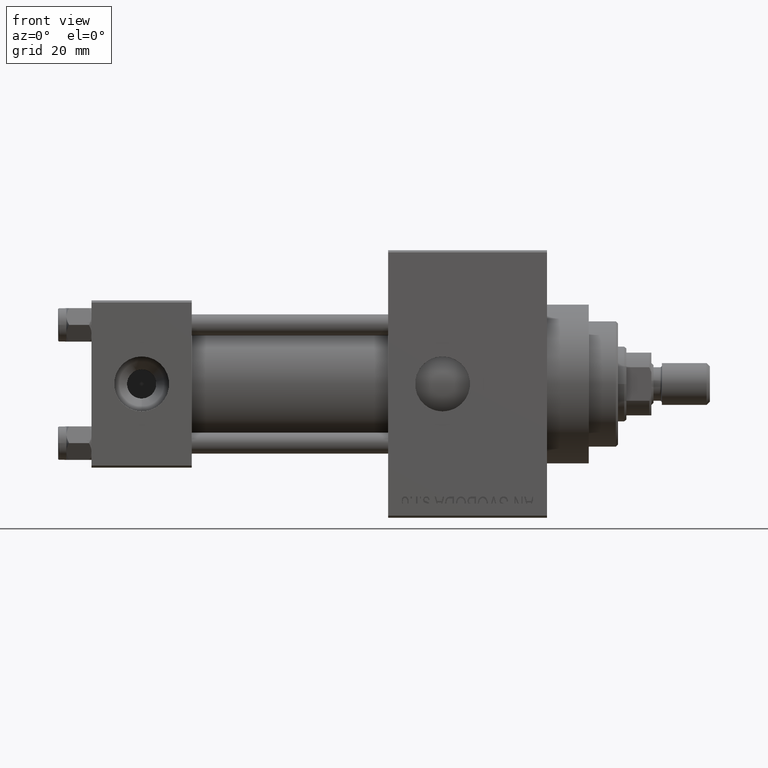
[diagram: clean part render]
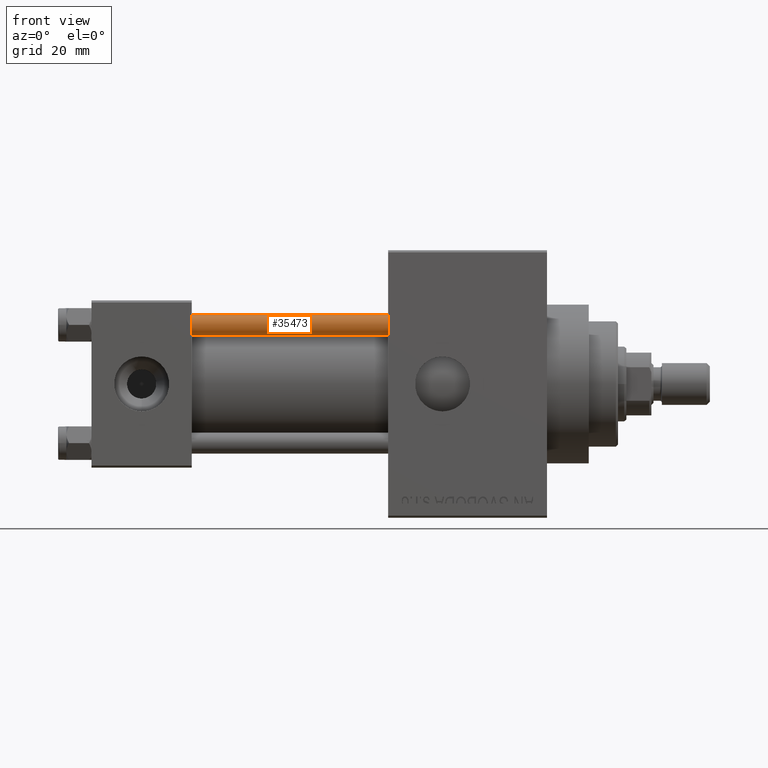
[diagram: same view with one face highlighted and labeled with its STEP entity id]
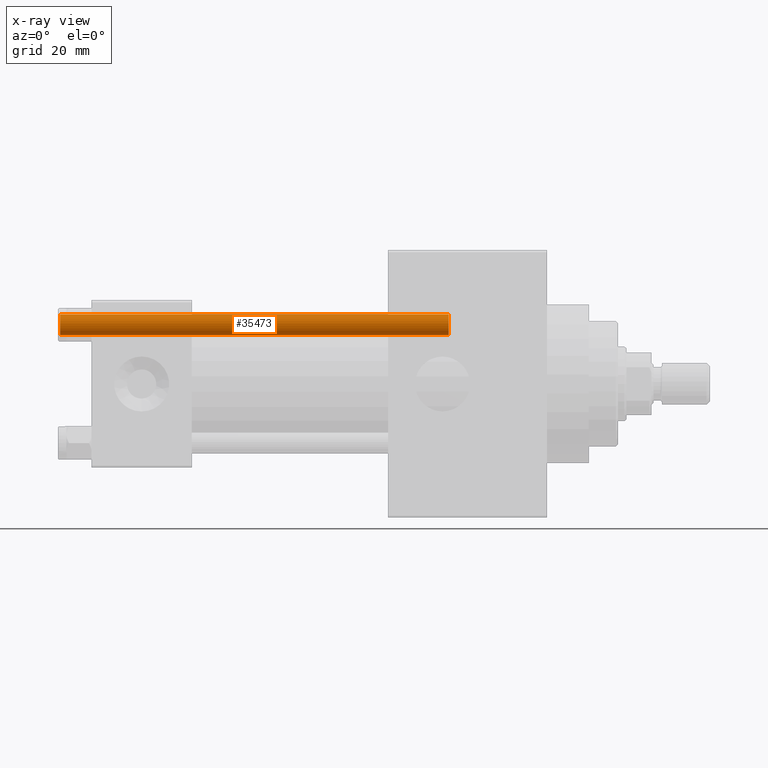
[diagram: x-ray of the same camera — body ghosted, the highlighted face saturated]
A machine part, front view. The second image highlights one B-rep face of the part: STEP entity #35473.
The next image is the same camera in x-ray: the body ghosted, the highlighted face saturated — about 0% of this face is hidden behind the body in this view.
In plain terms, the highlighted cylindrical surface (edge-blend (fillet) strip) has radius 2.5 mm, axis along (1, 0, 0).
Its self-contained STEP definition (entity closure, byte-faithful):
#141 = VERTEX_POINT ( 'NONE', #17518 ) ;
#617 = CYLINDRICAL_SURFACE ( 'NONE', #12914, 2.500000000000000000 ) ;
#654 = ORIENTED_EDGE ( 'NONE', *, *, #15210, .T. ) ;
#1101 = EDGE_CURVE ( 'NONE', #40029, #48490, #5914, .T. ) ;
#1356 = FACE_OUTER_BOUND ( 'NONE', #9969, .T. ) ;
#2603 = AXIS2_PLACEMENT_3D ( 'NONE', #40041, #25798, #25047 ) ;
#5330 = CARTESIAN_POINT ( 'NONE',  ( 2.500000000000000000, 3.061616997868383141E-16, 0.5000000000000004441 ) ) ;
#5471 = DIRECTION ( 'NONE',  ( -0.000000000000000000, -0.000000000000000000, -1.000000000000000000 ) ) ;
#5914 = LINE ( 'NONE', #36191, #36561 ) ;
#6599 = CIRCLE ( 'NONE', #2603, 2.500000000000000000 ) ;
#9623 = EDGE_CURVE ( 'NONE', #141, #37247, #38768, .T. ) ;
#9969 = EDGE_LOOP ( 'NONE', ( #654, #41514, #14313, #20814 ) ) ;
#11991 = CARTESIAN_POINT ( 'NONE',  ( 0.000000000000000000, 0.000000000000000000, 93.50000000000001421 ) ) ;
#12238 = DIRECTION ( 'NONE',  ( 0.000000000000000000, 0.000000000000000000, -1.000000000000000000 ) ) ;
#12914 = AXIS2_PLACEMENT_3D ( 'NONE', #16613, #38873, #47108 ) ;
#14313 = ORIENTED_EDGE ( 'NONE', *, *, #15860, .T. ) ;
#15210 = EDGE_CURVE ( 'NONE', #141, #40029, #36121, .T. ) ;
#15860 = EDGE_CURVE ( 'NONE', #48490, #37247, #6599, .T. ) ;
#16613 = CARTESIAN_POINT ( 'NONE',  ( 0.000000000000000000, 0.000000000000000000, 94.00000000000000000 ) ) ;
#17518 = CARTESIAN_POINT ( 'NONE',  ( -2.500000000000000000, 0.000000000000000000, 93.50000000000001421 ) ) ;
#18009 = CARTESIAN_POINT ( 'NONE',  ( -2.500000000000000000, 0.000000000000000000, 0.5000000000000004441 ) ) ;
#19513 = DIRECTION ( 'NONE',  ( 1.000000000000000000, 0.000000000000000000, 0.000000000000000000 ) ) ;
#20747 = CARTESIAN_POINT ( 'NONE',  ( -2.500000000000000000, 0.000000000000000000, 94.00000000000000000 ) ) ;
#20814 = ORIENTED_EDGE ( 'NONE', *, *, #9623, .F. ) ;
#25047 = DIRECTION ( 'NONE',  ( 1.000000000000000000, 0.000000000000000000, 0.000000000000000000 ) ) ;
#25798 = DIRECTION ( 'NONE',  ( -0.000000000000000000, -0.000000000000000000, 1.000000000000000000 ) ) ;
#35231 = VECTOR ( 'NONE', #5471, 1000.000000000000000 ) ;
#35473 = ADVANCED_FACE ( 'NONE', ( #1356 ), #617, .T. ) ;
#36121 = CIRCLE ( 'NONE', #37738, 2.500000000000000000 ) ;
#36191 = CARTESIAN_POINT ( 'NONE',  ( 2.500000000000000000, 3.061616997868383141E-16, 94.00000000000000000 ) ) ;
#36561 = VECTOR ( 'NONE', #43924, 1000.000000000000000 ) ;
#36939 = CARTESIAN_POINT ( 'NONE',  ( 2.500000000000000000, 3.061616997868383141E-16, 93.50000000000001421 ) ) ;
#37247 = VERTEX_POINT ( 'NONE', #18009 ) ;
#37738 = AXIS2_PLACEMENT_3D ( 'NONE', #11991, #12238, #19513 ) ;
#38768 = LINE ( 'NONE', #20747, #35231 ) ;
#38873 = DIRECTION ( 'NONE',  ( -0.000000000000000000, -0.000000000000000000, -1.000000000000000000 ) ) ;
#40029 = VERTEX_POINT ( 'NONE', #36939 ) ;
#40041 = CARTESIAN_POINT ( 'NONE',  ( 0.000000000000000000, 0.000000000000000000, 0.5000000000000004441 ) ) ;
#41514 = ORIENTED_EDGE ( 'NONE', *, *, #1101, .T. ) ;
#43924 = DIRECTION ( 'NONE',  ( -0.000000000000000000, -0.000000000000000000, -1.000000000000000000 ) ) ;
#47108 = DIRECTION ( 'NONE',  ( -1.000000000000000000, 0.000000000000000000, 0.000000000000000000 ) ) ;
#48490 = VERTEX_POINT ( 'NONE', #5330 ) ;